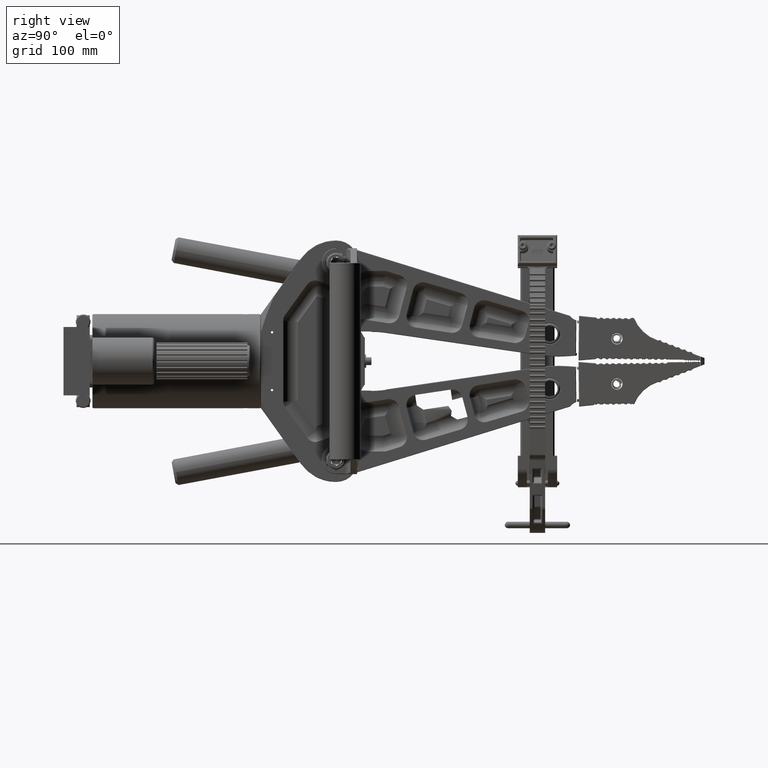
[diagram: clean part render]
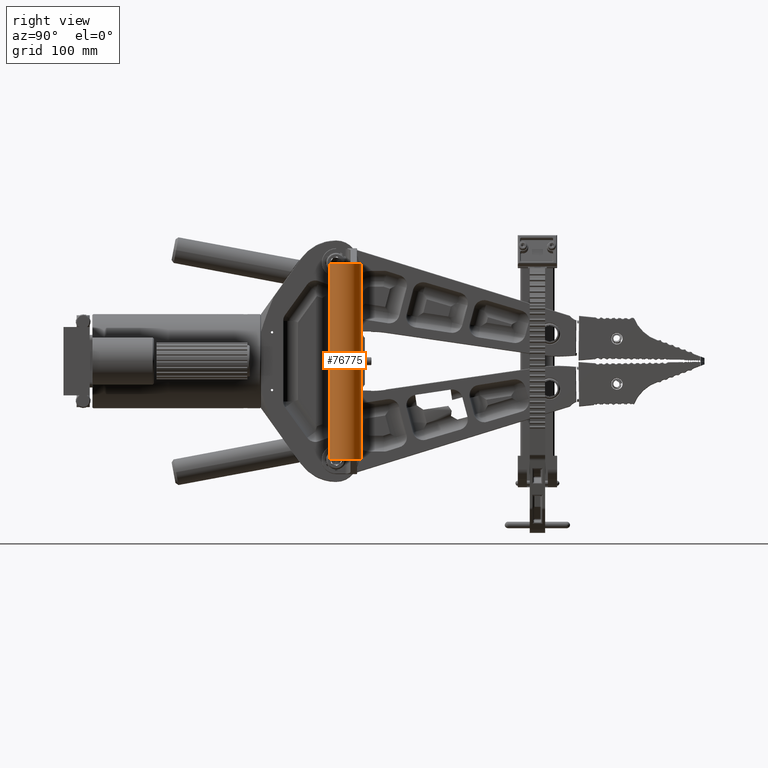
[diagram: same view with one face highlighted and labeled with its STEP entity id]
A machine part, right view. The second image highlights one B-rep face of the part: STEP entity #76775.
In plain terms, the highlighted cylindrical surface (edge-blend (fillet) strip) has radius 19.05 mm, axis along (-0, -0, -1).
Its self-contained STEP definition (entity closure, byte-faithful):
#3312 = LINE ( 'NONE', #6219, #3336 ) ;
#3327 = CIRCLE ( 'NONE', #88429, 0.7499999999999998900 ) ;
#3334 = LINE ( 'NONE', #6209, #3335 ) ;
#3335 = VECTOR ( 'NONE', #6210, 39.37007874015748100 ) ;
#3336 = VECTOR ( 'NONE', #6220, 39.37007874015748100 ) ;
#3350 = CIRCLE ( 'NONE', #88441, 0.7499999999999998900 ) ;
#6140 = CARTESIAN_POINT ( 'NONE',  ( 5.188000000000001500, 4.004500000000002800, 4.655499999999997300 ) ) ;
#6141 = DIRECTION ( 'NONE',  ( -3.673819061467144600E-016, -3.673819061467145600E-016, -1.000000000000000000 ) ) ;
#6142 = DIRECTION ( 'NONE',  ( 0.0000000000000000000, 1.000000000000000000, -7.284927983104702900E-016 ) ) ;
#6209 = CARTESIAN_POINT ( 'NONE',  ( 5.188000000000001500, 4.754500000000002800, 4.687499999999997300 ) ) ;
#6210 = DIRECTION ( 'NONE',  ( -3.673819061467145100E-016, -3.673819061467145600E-016, -1.000000000000000000 ) ) ;
#6219 = CARTESIAN_POINT ( 'NONE',  ( 5.188000000000001500, 3.254500000000003300, 4.687499999999998200 ) ) ;
#6220 = DIRECTION ( 'NONE',  ( -3.673819061467145100E-016, -3.673819061467145600E-016, -1.000000000000000000 ) ) ;
#6280 = CARTESIAN_POINT ( 'NONE',  ( 5.187999999999997100, 4.004500000000000200, -4.655500000000002600 ) ) ;
#6291 = DIRECTION ( 'NONE',  ( 3.673819061467144600E-016, 3.673819061467145600E-016, 1.000000000000000000 ) ) ;
#6292 = DIRECTION ( 'NONE',  ( 0.0000000000000000000, 1.000000000000000000, -7.284927983104702900E-016 ) ) ;
#27786 = CARTESIAN_POINT ( 'NONE',  ( 5.187999999999999700, 3.254500000000003300, 4.655499999999998200 ) ) ;
#27790 = CARTESIAN_POINT ( 'NONE',  ( 5.187999999999999700, 4.754500000000002800, 4.655499999999996400 ) ) ;
#27793 = CARTESIAN_POINT ( 'NONE',  ( 5.187999999999997100, 4.754500000000000200, -4.655500000000003500 ) ) ;
#27798 = CARTESIAN_POINT ( 'NONE',  ( 5.187999999999997100, 3.254499999999999700, -4.655500000000002600 ) ) ;
#59474 = EDGE_CURVE ( 'NONE', #94458, #94454, #3327, .T. ) ;
#59491 = EDGE_CURVE ( 'NONE', #94458, #94461, #3334, .T. ) ;
#59500 = EDGE_CURVE ( 'NONE', #94454, #94466, #3312, .T. ) ;
#59522 = EDGE_CURVE ( 'NONE', #94466, #94461, #3350, .T. ) ;
#76775 = ADVANCED_FACE ( 'NONE', ( #107796 ), #107798, .T. ) ;
#88429 = AXIS2_PLACEMENT_3D ( 'NONE', #6140, #6141, #6142 ) ;
#88441 = AXIS2_PLACEMENT_3D ( 'NONE', #6280, #6291, #6292 ) ;
#90761 = AXIS2_PLACEMENT_3D ( 'NONE', #110202, #110197, #110199 ) ;
#91301 = EDGE_LOOP ( 'NONE', ( #91632, #91634, #91636, #91638 ) ) ;
#91632 = ORIENTED_EDGE ( 'NONE', *, *, #59491, .F. ) ;
#91634 = ORIENTED_EDGE ( 'NONE', *, *, #59474, .T. ) ;
#91636 = ORIENTED_EDGE ( 'NONE', *, *, #59500, .T. ) ;
#91638 = ORIENTED_EDGE ( 'NONE', *, *, #59522, .T. ) ;
#94454 = VERTEX_POINT ( 'NONE', #27786 ) ;
#94458 = VERTEX_POINT ( 'NONE', #27790 ) ;
#94461 = VERTEX_POINT ( 'NONE', #27793 ) ;
#94466 = VERTEX_POINT ( 'NONE', #27798 ) ;
#107796 = FACE_OUTER_BOUND ( 'NONE', #91301, .T. ) ;
#107798 = CYLINDRICAL_SURFACE ( 'NONE', #90761, 0.7499999999999998900 ) ;
#110197 = DIRECTION ( 'NONE',  ( -3.673819061467144600E-016, -3.673819061467145600E-016, -1.000000000000000000 ) ) ;
#110199 = DIRECTION ( 'NONE',  ( 0.0000000000000000000, -1.000000000000000000, 7.284927983104702900E-016 ) ) ;
#110202 = CARTESIAN_POINT ( 'NONE',  ( 5.188000000000001500, 4.004500000000002800, 4.687499999999997300 ) ) ;